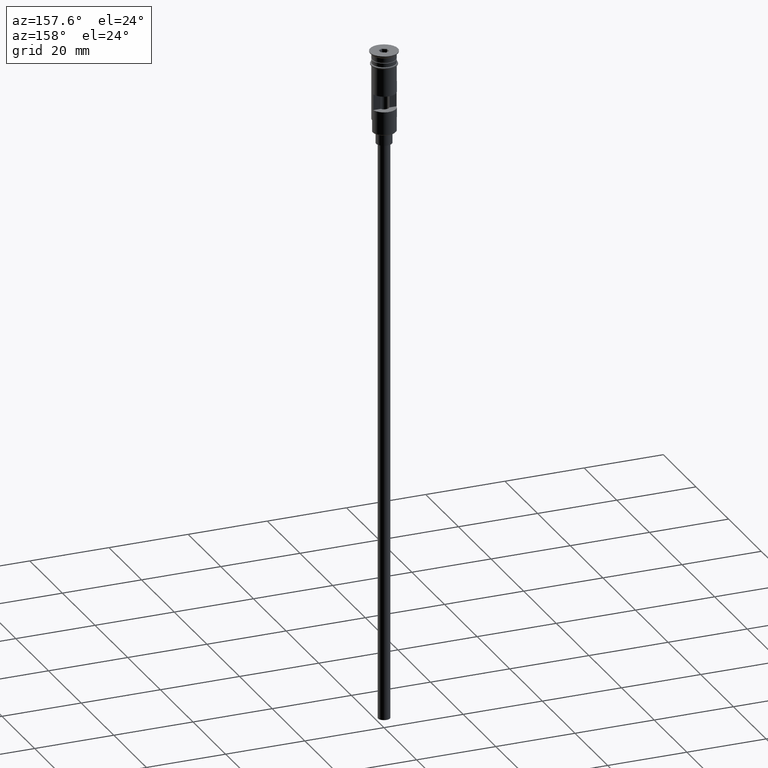
[diagram: clean part render]
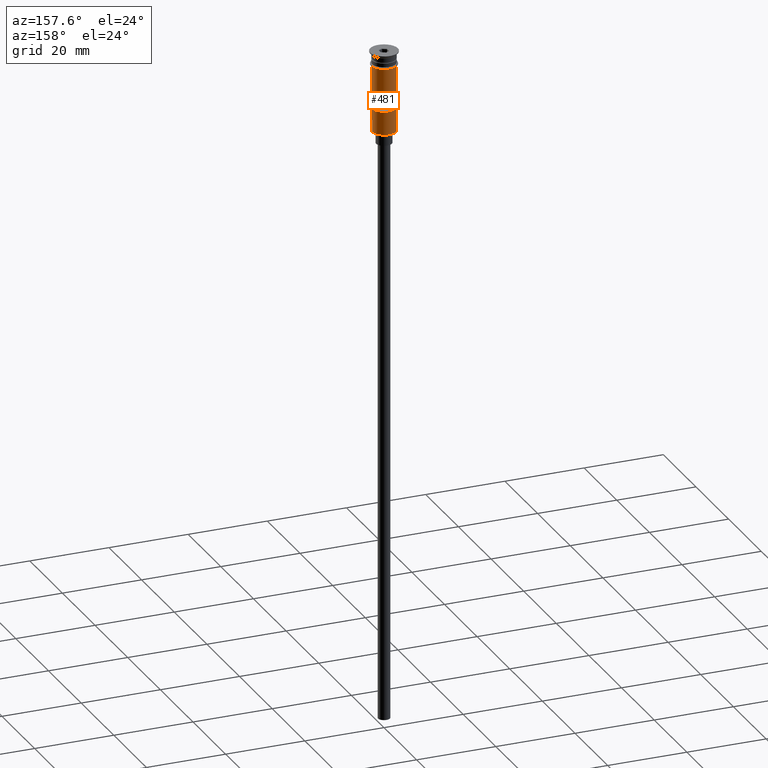
[diagram: same view with one face highlighted and labeled with its STEP entity id]
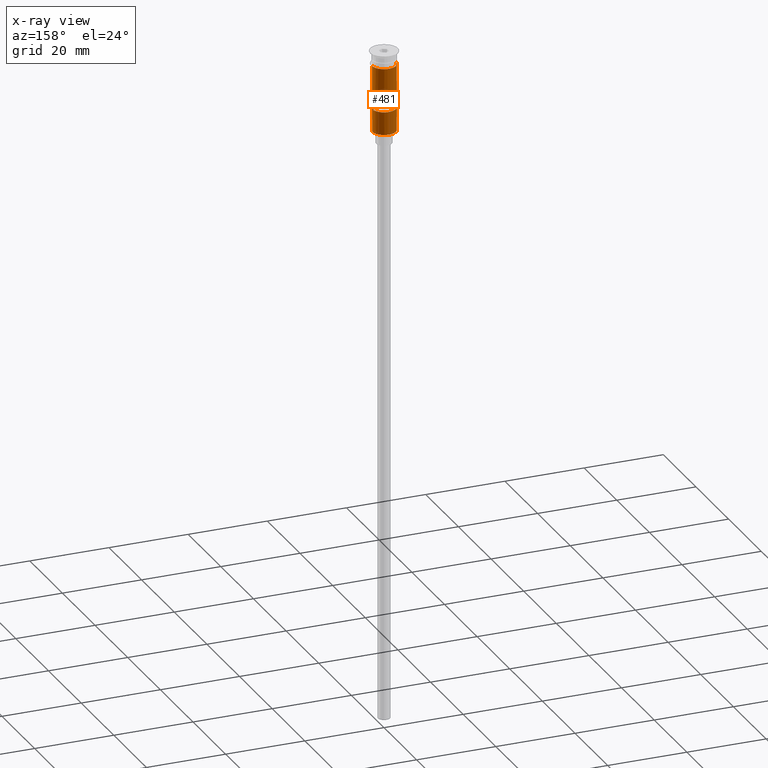
[diagram: x-ray of the same camera — body ghosted, the highlighted face saturated]
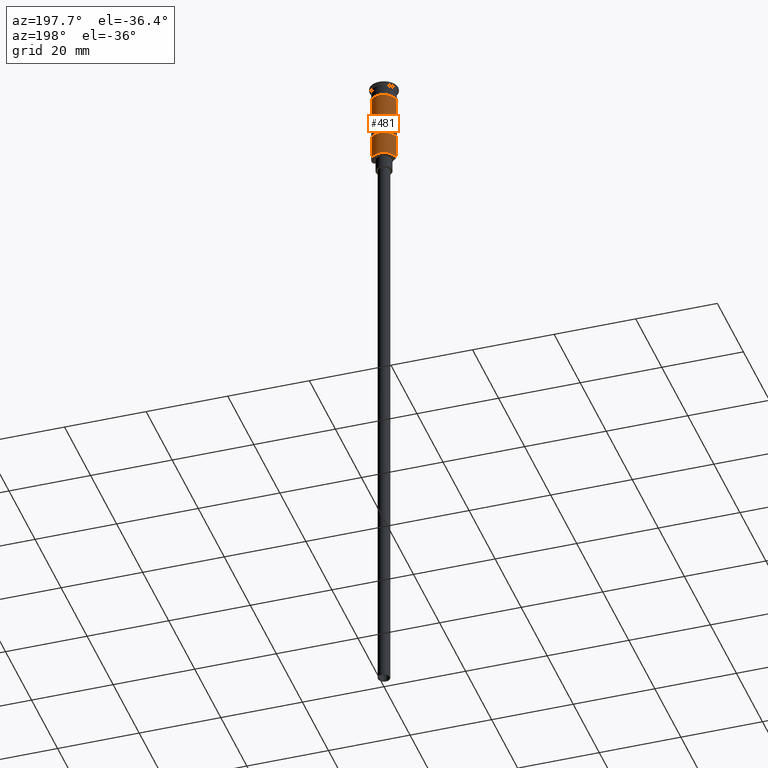
[diagram: same view with one face highlighted and labeled with its STEP entity id]
A machine part, auxiliary view. The second image highlights one B-rep face of the part: STEP entity #481.
The next image is the same camera in x-ray: the body ghosted, the highlighted face saturated — about 0% of this face is hidden behind the body in this view.
A second angle (auxiliary view) of the same face is appended — the face is thin or edge-on in the first view.
In plain terms, the highlighted cylindrical surface (edge-blend (fillet) strip) has radius 3 mm, axis along (-0, -0, 1).
Its self-contained STEP definition (entity closure, byte-faithful):
#1 = CARTESIAN_POINT ( 'NONE',  ( 2.939387691339810260, 0.5999999999999994227, -14.50000000000000000 ) ) ;
#3 = EDGE_CURVE ( 'NONE', #1278, #891, #1195, .T. ) ;
#35 = CARTESIAN_POINT ( 'NONE',  ( -2.939387691339810260, 0.5999999999999994227, -14.50000000000000000 ) ) ;
#82 = CARTESIAN_POINT ( 'NONE',  ( 2.999999999999995115, 3.673940397442053952E-16, -20.50000000000000000 ) ) ;
#98 = DIRECTION ( 'NONE',  ( -1.000000000000000000, 0.000000000000000000, 0.000000000000000000 ) ) ;
#104 = CARTESIAN_POINT ( 'NONE',  ( 2.999999999999995115, 3.673940397442053952E-16, -20.29999999999995808 ) ) ;
#112 = CARTESIAN_POINT ( 'NONE',  ( -2.939387691339810260, 0.5999999999999994227, -10.50000000000000000 ) ) ;
#126 = VECTOR ( 'NONE', #1051, 1000.000000000000000 ) ;
#223 = ORIENTED_EDGE ( 'NONE', *, *, #305, .F. ) ;
#224 = DIRECTION ( 'NONE',  ( -1.000000000000000000, 0.000000000000000000, 0.000000000000000000 ) ) ;
#276 = CARTESIAN_POINT ( 'NONE',  ( -2.999999999999995115, 0.000000000000000000, -20.29999999999995808 ) ) ;
#305 = EDGE_CURVE ( 'NONE', #1379, #1167, #1218, .T. ) ;
#321 = DIRECTION ( 'NONE',  ( 0.000000000000000000, 0.000000000000000000, 1.000000000000000000 ) ) ;
#336 = VECTOR ( 'NONE', #648, 1000.000000000000000 ) ;
#338 = CIRCLE ( 'NONE', #1342, 2.999999999999996891 ) ;
#390 = CYLINDRICAL_SURFACE ( 'NONE', #710, 2.999999999999996891 ) ;
#391 = AXIS2_PLACEMENT_3D ( 'NONE', #550, #1186, #98 ) ;
#407 = CARTESIAN_POINT ( 'NONE',  ( 2.999999999999996891, 3.673940397442055924E-16, -17.30000000000000782 ) ) ;
#439 = DIRECTION ( 'NONE',  ( -0.000000000000000000, -0.000000000000000000, 1.000000000000000000 ) ) ;
#441 = CIRCLE ( 'NONE', #391, 2.999999999999996891 ) ;
#454 = DIRECTION ( 'NONE',  ( 1.000000000000000000, 0.000000000000000000, 0.000000000000000000 ) ) ;
#481 = ADVANCED_FACE ( 'NONE', ( #1271, #880 ), #390, .T. ) ;
#513 = DIRECTION ( 'NONE',  ( -0.000000000000000000, -0.000000000000000000, 1.000000000000000000 ) ) ;
#523 = DIRECTION ( 'NONE',  ( 1.000000000000000000, 0.000000000000000000, 0.000000000000000000 ) ) ;
#526 = CARTESIAN_POINT ( 'NONE',  ( -2.999999999999996891, 3.673940397442055924E-16, 0.000000000000000000 ) ) ;
#530 = VERTEX_POINT ( 'NONE', #787 ) ;
#550 = CARTESIAN_POINT ( 'NONE',  ( 0.000000000000000000, 0.000000000000000000, -14.50000000000000000 ) ) ;
#561 = CARTESIAN_POINT ( 'NONE',  ( -2.939387691339810260, 0.5999999999999994227, 0.000000000000000000 ) ) ;
#571 = ORIENTED_EDGE ( 'NONE', *, *, #3, .F. ) ;
#577 = ORIENTED_EDGE ( 'NONE', *, *, #1076, .F. ) ;
#605 = VECTOR ( 'NONE', #717, 1000.000000000000000 ) ;
#615 = CARTESIAN_POINT ( 'NONE',  ( 0.000000000000000000, 0.000000000000000000, -3.499999999999998668 ) ) ;
#616 = EDGE_CURVE ( 'NONE', #922, #754, #918, .T. ) ;
#630 = VECTOR ( 'NONE', #1216, 1000.000000000000000 ) ;
#646 = ORIENTED_EDGE ( 'NONE', *, *, #1488, .F. ) ;
#648 = DIRECTION ( 'NONE',  ( -0.000000000000000000, -0.000000000000000000, 1.000000000000000000 ) ) ;
#677 = VERTEX_POINT ( 'NONE', #104 ) ;
#679 = CIRCLE ( 'NONE', #1092, 2.999999999999996891 ) ;
#680 = LINE ( 'NONE', #82, #791 ) ;
#689 = CARTESIAN_POINT ( 'NONE',  ( 0.000000000000000000, 0.000000000000000000, -20.29999999999995808 ) ) ;
#710 = AXIS2_PLACEMENT_3D ( 'NONE', #1525, #513, #523 ) ;
#717 = DIRECTION ( 'NONE',  ( 0.000000000000000000, 0.000000000000000000, -1.000000000000000000 ) ) ;
#722 = CARTESIAN_POINT ( 'NONE',  ( 2.939387691339810260, 0.5999999999999994227, 0.000000000000000000 ) ) ;
#733 = EDGE_CURVE ( 'NONE', #867, #530, #1223, .T. ) ;
#754 = VERTEX_POINT ( 'NONE', #112 ) ;
#787 = CARTESIAN_POINT ( 'NONE',  ( -2.999999999999995115, 0.000000000000000000, -17.30000000000000782 ) ) ;
#791 = VECTOR ( 'NONE', #439, 1000.000000000000000 ) ;
#800 = ORIENTED_EDGE ( 'NONE', *, *, #1241, .F. ) ;
#849 = CARTESIAN_POINT ( 'NONE',  ( -2.999999999999995115, 0.000000000000000000, -20.50000000000000000 ) ) ;
#852 = EDGE_CURVE ( 'NONE', #530, #1567, #1382, .T. ) ;
#857 = ORIENTED_EDGE ( 'NONE', *, *, #852, .T. ) ;
#867 = VERTEX_POINT ( 'NONE', #276 ) ;
#876 = EDGE_LOOP ( 'NONE', ( #223, #577, #944, #646 ) ) ;
#880 = FACE_OUTER_BOUND ( 'NONE', #1246, .T. ) ;
#891 = VERTEX_POINT ( 'NONE', #1485 ) ;
#916 = ORIENTED_EDGE ( 'NONE', *, *, #1412, .T. ) ;
#918 = LINE ( 'NONE', #561, #126 ) ;
#919 = CARTESIAN_POINT ( 'NONE',  ( -2.999999999999999112, 3.673940397442058389E-16, -3.499999999999998668 ) ) ;
#922 = VERTEX_POINT ( 'NONE', #35 ) ;
#944 = ORIENTED_EDGE ( 'NONE', *, *, #616, .F. ) ;
#967 = CIRCLE ( 'NONE', #1311, 2.999999999999998668 ) ;
#1006 = CARTESIAN_POINT ( 'NONE',  ( 2.939387691339810260, 0.5999999999999994227, -10.50000000000000000 ) ) ;
#1051 = DIRECTION ( 'NONE',  ( -0.000000000000000000, -0.000000000000000000, 1.000000000000000000 ) ) ;
#1053 = DIRECTION ( 'NONE',  ( -0.000000000000000000, -0.000000000000000000, 1.000000000000000000 ) ) ;
#1076 = EDGE_CURVE ( 'NONE', #754, #1379, #679, .T. ) ;
#1082 = DIRECTION ( 'NONE',  ( -0.000000000000000000, -0.000000000000000000, 1.000000000000000000 ) ) ;
#1092 = AXIS2_PLACEMENT_3D ( 'NONE', #1334, #1558, #454 ) ;
#1141 = ORIENTED_EDGE ( 'NONE', *, *, #1526, .F. ) ;
#1167 = VERTEX_POINT ( 'NONE', #1 ) ;
#1186 = DIRECTION ( 'NONE',  ( 0.000000000000000000, 0.000000000000000000, 1.000000000000000000 ) ) ;
#1195 = LINE ( 'NONE', #1565, #1356 ) ;
#1216 = DIRECTION ( 'NONE',  ( -0.000000000000000000, -0.000000000000000000, 1.000000000000000000 ) ) ;
#1218 = LINE ( 'NONE', #722, #605 ) ;
#1223 = LINE ( 'NONE', #849, #630 ) ;
#1241 = EDGE_CURVE ( 'NONE', #891, #1567, #967, .T. ) ;
#1246 = EDGE_LOOP ( 'NONE', ( #1250, #857, #800, #571, #1141, #916 ) ) ;
#1250 = ORIENTED_EDGE ( 'NONE', *, *, #733, .T. ) ;
#1271 = FACE_BOUND ( 'NONE', #876, .T. ) ;
#1278 = VERTEX_POINT ( 'NONE', #407 ) ;
#1311 = AXIS2_PLACEMENT_3D ( 'NONE', #615, #1082, #1490 ) ;
#1334 = CARTESIAN_POINT ( 'NONE',  ( 0.000000000000000000, 0.000000000000000000, -10.50000000000000000 ) ) ;
#1342 = AXIS2_PLACEMENT_3D ( 'NONE', #689, #321, #224 ) ;
#1356 = VECTOR ( 'NONE', #1053, 1000.000000000000000 ) ;
#1379 = VERTEX_POINT ( 'NONE', #1006 ) ;
#1382 = LINE ( 'NONE', #526, #336 ) ;
#1412 = EDGE_CURVE ( 'NONE', #677, #867, #338, .T. ) ;
#1485 = CARTESIAN_POINT ( 'NONE',  ( 2.999999999999998668, 0.000000000000000000, -3.499999999999998668 ) ) ;
#1488 = EDGE_CURVE ( 'NONE', #1167, #922, #441, .T. ) ;
#1490 = DIRECTION ( 'NONE',  ( 1.000000000000000000, 0.000000000000000000, 0.000000000000000000 ) ) ;
#1525 = CARTESIAN_POINT ( 'NONE',  ( 0.000000000000000000, 0.000000000000000000, 0.000000000000000000 ) ) ;
#1526 = EDGE_CURVE ( 'NONE', #677, #1278, #680, .T. ) ;
#1558 = DIRECTION ( 'NONE',  ( -0.000000000000000000, 0.000000000000000000, -1.000000000000000000 ) ) ;
#1565 = CARTESIAN_POINT ( 'NONE',  ( 2.999999999999996891, 0.000000000000000000, 0.000000000000000000 ) ) ;
#1567 = VERTEX_POINT ( 'NONE', #919 ) ;